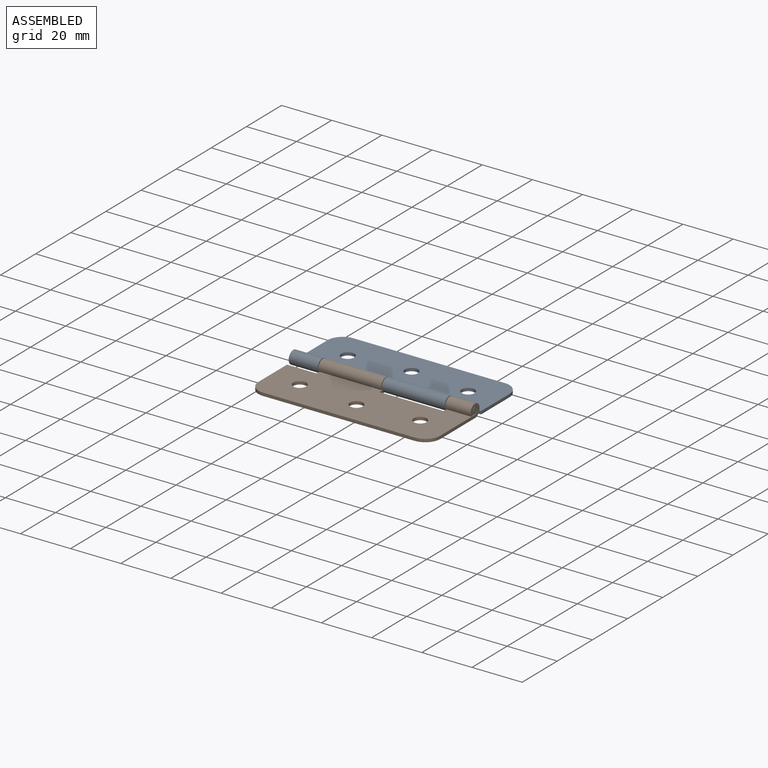
[diagram: assembled view]
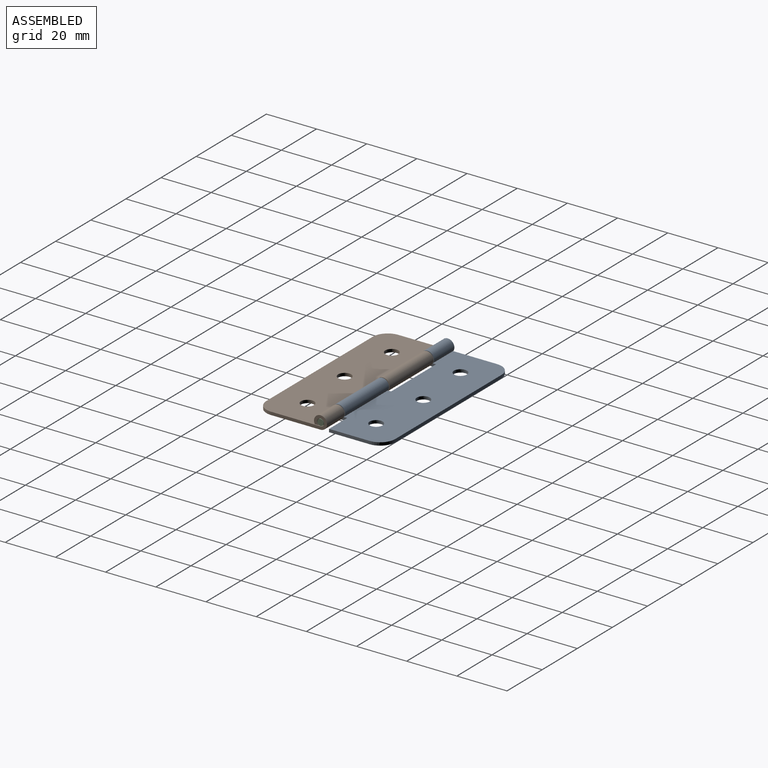
[diagram: assembled view, second angle]
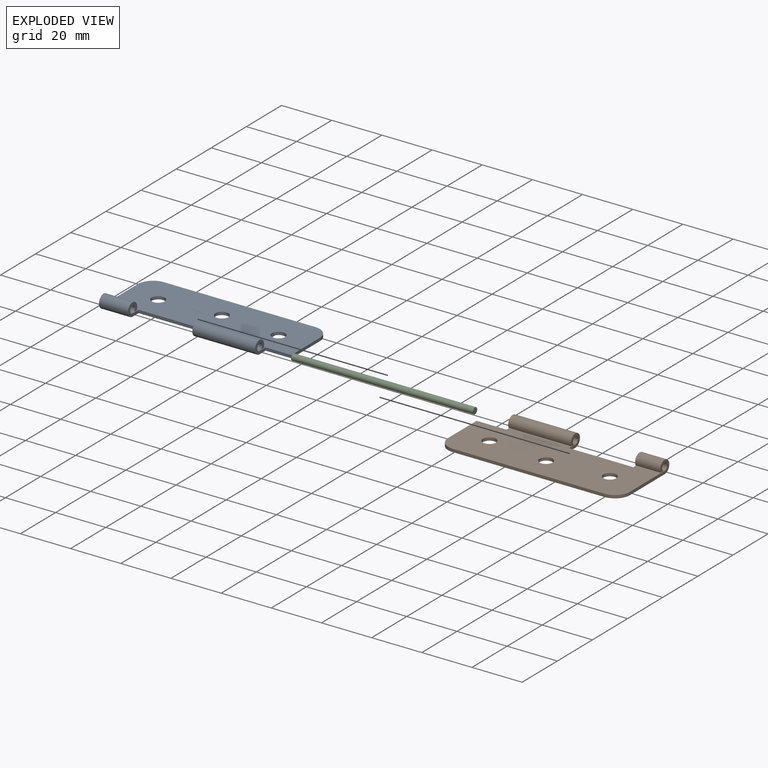
[diagram: exploded view]
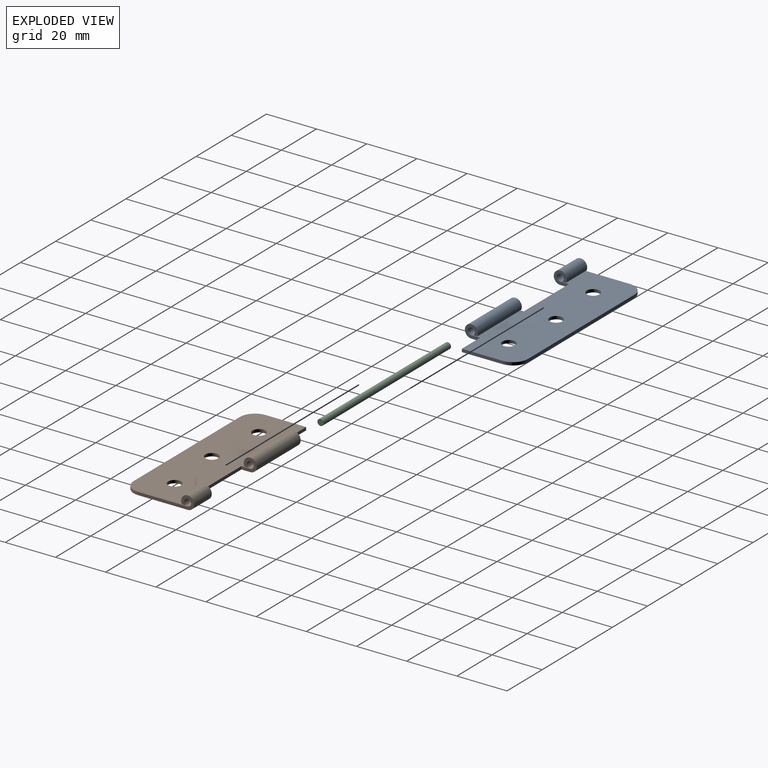
[diagram: exploded view, second angle]
ASSEMBLY  parts=3 mates=2
PART A: 21 faces, bbox 72.5x28.2x5.2 mm
  f0: plane 72.5x25.6mm, normal (0,0,1), area 1654.8mm2, adj f1,f2,f7,f9,f10,f11,f12,f13
  f1: cylinder r=1.4mm len=25mm, axis (-1,0,0), area 201mm2, adj f0,f3,f14,f15
  f2: cylinder r=1.4mm len=11.6mm, axis (-1,0,0), area 93.3mm2, adj f0,f4,f7,f12
  f3: plane 25x1.59mm, normal (0,0,-1), area 39.6mm2, adj f1,f5,f14,f15
  f4: plane 11.6x1.59mm, normal (0,0,-1), area 18.4mm2, adj f2,f6,f7,f12
  f5: cylinder r=2.6mm len=25mm, axis (-1,0,0), area 337.5mm2, adj f3,f8,f14,f15
  f6: cylinder r=2.6mm len=11.6mm, axis (-1,0,0), area 156.6mm2, adj f4,f7,f8,f12
  f7: plane 6x5.2mm, normal (1,0,0), area 17mm2, adj f0,f2,f4,f6,f8,f13
  f8: plane 72.5x25.6mm, normal (0,0,-1), area 1654.8mm2, adj f5,f6,f7,f9,f10,f11,f12,f13
  f9: cylinder r=6mm len=6mm, axis (0,0,-1), area 11.3mm2, adj f0,f8,f10,f17
  f10: plane 60.5x1.2mm, normal (0,1,0), area 72.6mm2, adj f0,f8,f9,f11
  f11: cylinder r=6mm len=6mm, axis (0,0,-1), area 11.3mm2, adj f0,f8,f10,f12
  f12: plane 22.2x5.2mm, normal (-1,0,0), area 36.4mm2, adj f0,f2,f4,f6,f8,f11
  f13: plane 25.6x1.2mm, normal (0,-1,0), area 30.7mm2, adj f0,f7,f8,f14
  f14: plane 6x5.2mm, normal (-1,0,0), area 17mm2, adj f0,f1,f3,f5,f8,f13
  f15: plane 6x5.2mm, normal (1,0,0), area 17mm2, adj f0,f1,f3,f5,f8,f16
  f16: plane 10.3x1.2mm, normal (0,-1,0), area 12.4mm2, adj f0,f8,f15,f17
  f17: plane 16.2x1.2mm, normal (1,0,0), area 19.4mm2, adj f0,f8,f9,f16
  f18: cylinder r=2.6mm len=5.2mm, axis (0,0,-1), area 19.6mm2, adj f0,f8
  f19: cylinder r=2.6mm len=5.2mm, axis (0,0,-1), area 19.6mm2, adj f0,f8
  f20: cylinder r=2.6mm len=5.2mm, axis (0,0,-1), area 19.6mm2, adj f0,f8
PART B: 22 faces, bbox 72.5x28.4x5.2 mm
  f0: cylinder r=2.6mm len=25mm, axis (1,0,0), area 337.5mm2, adj f2,f12,f20,f21
  f1: cylinder r=1.4mm len=25mm, axis (1,0,0), area 201mm2, adj f2,f3,f12,f21
  f2: plane 25x1.59mm, normal (0,0,-1), area 39.6mm2, adj f0,f1,f12,f21
  f3: plane 72.5x25.75mm, normal (0,0,1), area 1654.6mm2, adj f1,f5,f7,f8,f9,f10,f11,f12
  f4: cylinder r=2.6mm len=10mm, axis (1,0,0), area 135mm2, adj f6,f9,f10,f20
  f5: cylinder r=1.4mm len=10mm, axis (1,0,0), area 80.4mm2, adj f3,f6,f9,f10
  f6: plane 10x1.59mm, normal (0,0,-1), area 15.9mm2, adj f4,f5,f9,f10
  f7: plane 60.5x1.2mm, normal (0,-1,0), area 72.6mm2, adj f3,f8,f19,f20
  f8: cylinder r=6mm len=6mm, axis (0,0,-1), area 11.3mm2, adj f3,f7,f9,f20
  f9: plane 22.35x5.2mm, normal (1,0,0), area 36.6mm2, adj f3,f4,f5,f6,f8,f20
  f10: plane 6.15x5.2mm, normal (-1,0,0), area 17.1mm2, adj f3,f4,f5,f6,f11,f20
  f11: plane 25.6x1.2mm, normal (0,1,0), area 30.7mm2, adj f3,f10,f20,f21
  f12: plane 5.65x5.2mm, normal (-1,0,0), area 16.5mm2, adj f0,f1,f2,f3,f13,f20
  f13: cylinder r=0.5mm len=1.2mm, axis (0,0,-1), area 0.9mm2, adj f3,f12,f14,f20
  f14: plane 11.4x1.2mm, normal (0,1,0), area 13.7mm2, adj f3,f13,f15,f20
  f15: plane 16.2x1.2mm, normal (-1,0,0), area 19.4mm2, adj f3,f14,f19,f20
  f16: cylinder r=2.6mm len=5.2mm, axis (0,0,-1), area 19.6mm2, adj f3,f20
  f17: cylinder r=2.6mm len=5.2mm, axis (0,0,-1), area 19.6mm2, adj f3,f20
  f18: cylinder r=2.6mm len=5.2mm, axis (0,0,-1), area 19.6mm2, adj f3,f20
  f19: cylinder r=6mm len=6mm, axis (0,0,-1), area 11.3mm2, adj f3,f7,f15,f20
  f20: plane 72.5x25.75mm, normal (0,0,-1), area 1654.6mm2, adj f0,f4,f7,f8,f9,f10,f11,f12
  f21: plane 6.15x5.2mm, normal (1,0,0), area 17.1mm2, adj f0,f1,f2,f3,f11,f20
PART C: 3 faces, bbox 2.5x2.5x72.5 mm
  f0: cylinder r=1.25mm len=72.5mm, axis (0,0,-1), area 569.4mm2, adj f1,f2
  f1: plane 2.5x2.5mm, normal (0,0,1), area 4.9mm2, adj f0
  f2: plane 2.5x2.5mm, normal (0,0,-1), area 4.9mm2, adj f0
PLACE A t=(55.73,47.23,60.59)mm
PLACE B t=(55.73,24.68,60.59)mm
PLACE C rot(axis=(0,1,0),90deg) t=(19.48,36.03,63.19)mm
MATE revolute B.f0 <-> C.f0  axis (1,0,0) through (91.98,36.03,63.19)mm
MATE revolute C.f0 <-> A.f1  axis (-1,0,0) through (19.48,36.03,63.19)mm
